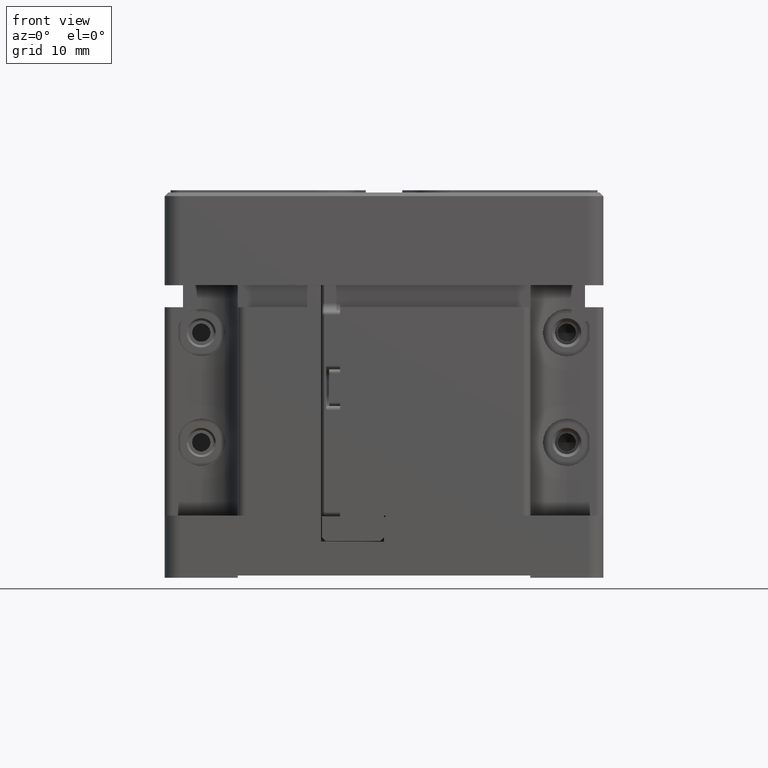
[diagram: clean part render]
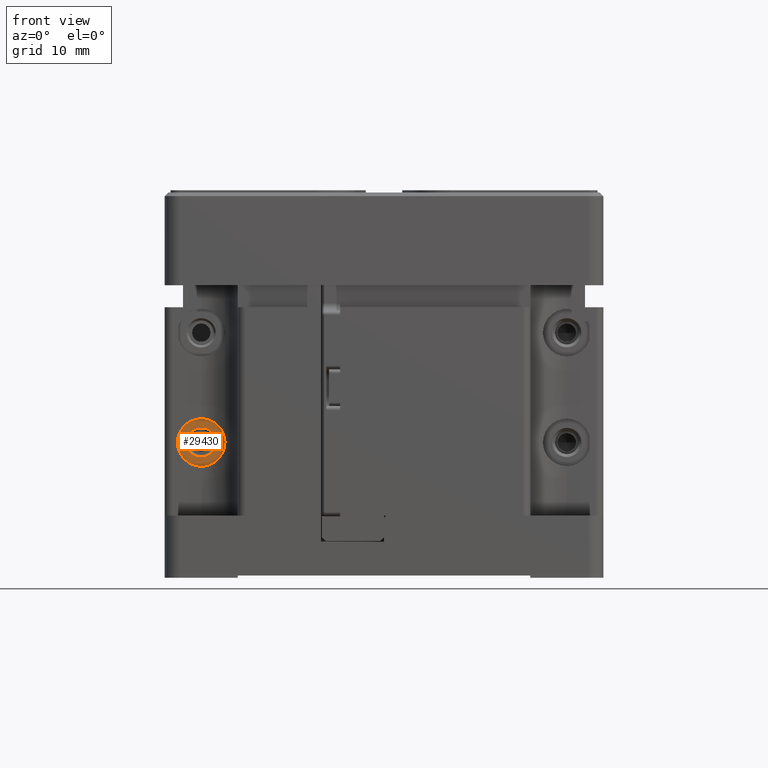
[diagram: same view with one face highlighted and labeled with its STEP entity id]
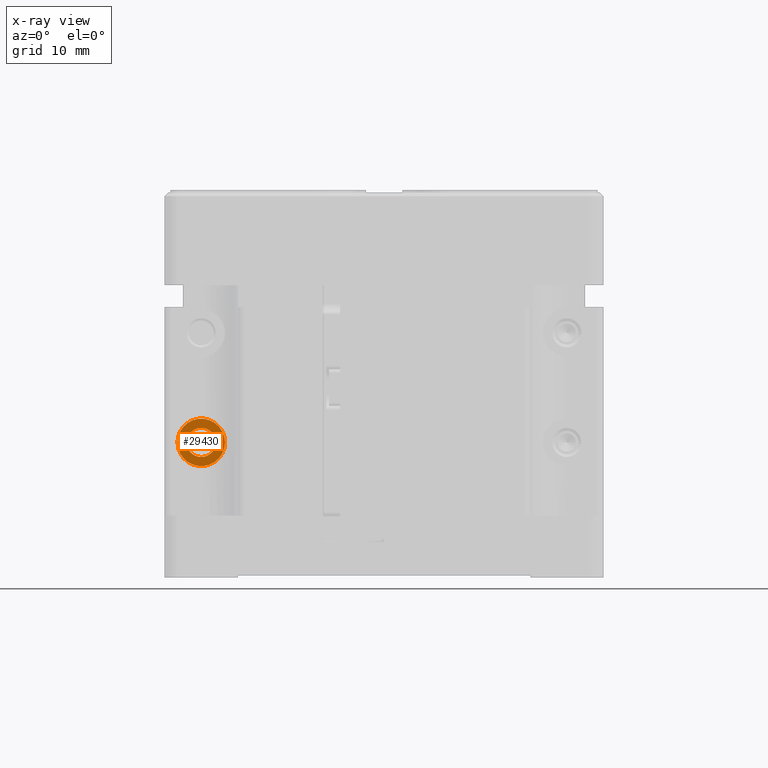
[diagram: x-ray of the same camera — body ghosted, the highlighted face saturated]
A machine part, front view. The second image highlights one B-rep face of the part: STEP entity #29430.
The next image is the same camera in x-ray: the body ghosted, the highlighted face saturated — about 0% of this face is hidden behind the body in this view.
In plain terms, the highlighted planar face has unit normal (0, -1, 0).
Its self-contained STEP definition (entity closure, byte-faithful):
#561 = DIRECTION ( 'NONE',  ( 0.000000000000000000, -1.000000000000000000, 0.000000000000000000 ) ) ;
#779 = DIRECTION ( 'NONE',  ( -1.000000000000000000, 0.000000000000000000, 0.000000000000000000 ) ) ;
#1632 = CARTESIAN_POINT ( 'NONE',  ( -25.00000000000000000, -16.50000000000000000, 10.00000000000000000 ) ) ;
#3420 = CARTESIAN_POINT ( 'NONE',  ( -25.00000000000000000, -16.50000000000000000, 10.00000000000000000 ) ) ;
#4058 = VERTEX_POINT ( 'NONE', #19546 ) ;
#4427 = EDGE_CURVE ( 'NONE', #16233, #13478, #10085, .T. ) ;
#5735 = AXIS2_PLACEMENT_3D ( 'NONE', #19599, #11636, #8990 ) ;
#6370 = EDGE_CURVE ( 'NONE', #4058, #33087, #7009, .T. ) ;
#6569 = EDGE_CURVE ( 'NONE', #4058, #33087, #34643, .T. ) ;
#7009 = CIRCLE ( 'NONE', #13217, 2.000000000000001776 ) ;
#8051 = ORIENTED_EDGE ( 'NONE', *, *, #18907, .F. ) ;
#8990 = DIRECTION ( 'NONE',  ( -1.000000000000000000, 0.000000000000000000, 0.000000000000000000 ) ) ;
#9648 = CIRCLE ( 'NONE', #5735, 3.249999999999999556 ) ;
#10060 = DIRECTION ( 'NONE',  ( 0.000000000000000000, -1.000000000000000000, 0.000000000000000000 ) ) ;
#10085 = CIRCLE ( 'NONE', #14596, 3.249999999999999556 ) ;
#11366 = EDGE_LOOP ( 'NONE', ( #8051, #25109 ) ) ;
#11520 = AXIS2_PLACEMENT_3D ( 'NONE', #32490, #561, #22411 ) ;
#11636 = DIRECTION ( 'NONE',  ( 0.000000000000000000, 1.000000000000000000, 0.000000000000000000 ) ) ;
#12545 = FACE_BOUND ( 'NONE', #27056, .T. ) ;
#13217 = AXIS2_PLACEMENT_3D ( 'NONE', #34790, #32317, #34448 ) ;
#13478 = VERTEX_POINT ( 'NONE', #32224 ) ;
#13795 = ORIENTED_EDGE ( 'NONE', *, *, #6370, .T. ) ;
#14596 = AXIS2_PLACEMENT_3D ( 'NONE', #3420, #19642, #779 ) ;
#16233 = VERTEX_POINT ( 'NONE', #19473 ) ;
#18363 = CARTESIAN_POINT ( 'NONE',  ( -23.00000000000000000, -16.50000000000000000, 10.00000000000000000 ) ) ;
#18907 = EDGE_CURVE ( 'NONE', #16233, #13478, #9648, .T. ) ;
#19473 = CARTESIAN_POINT ( 'NONE',  ( -28.25000000000000000, -16.50000000000000000, 10.00000000000000000 ) ) ;
#19546 = CARTESIAN_POINT ( 'NONE',  ( -27.00000000000000000, -16.50000000000000000, 10.00000000000000000 ) ) ;
#19599 = CARTESIAN_POINT ( 'NONE',  ( -25.00000000000000000, -16.50000000000000000, 10.00000000000000000 ) ) ;
#19642 = DIRECTION ( 'NONE',  ( 0.000000000000000000, -1.000000000000000000, 0.000000000000000000 ) ) ;
#20313 = PLANE ( 'NONE',  #26884 ) ;
#22411 = DIRECTION ( 'NONE',  ( -1.000000000000000000, 0.000000000000000000, 0.000000000000000000 ) ) ;
#25109 = ORIENTED_EDGE ( 'NONE', *, *, #4427, .T. ) ;
#25765 = FACE_OUTER_BOUND ( 'NONE', #11366, .T. ) ;
#26884 = AXIS2_PLACEMENT_3D ( 'NONE', #1632, #10060, #28429 ) ;
#27056 = EDGE_LOOP ( 'NONE', ( #31681, #13795 ) ) ;
#28429 = DIRECTION ( 'NONE',  ( 0.000000000000000000, 0.000000000000000000, -1.000000000000000000 ) ) ;
#29430 = ADVANCED_FACE ( 'NONE', ( #12545, #25765 ), #20313, .T. ) ;
#31681 = ORIENTED_EDGE ( 'NONE', *, *, #6569, .F. ) ;
#32224 = CARTESIAN_POINT ( 'NONE',  ( -21.75000000000000000, -16.50000000000000000, 10.00000000000000000 ) ) ;
#32317 = DIRECTION ( 'NONE',  ( 0.000000000000000000, 1.000000000000000000, 0.000000000000000000 ) ) ;
#32490 = CARTESIAN_POINT ( 'NONE',  ( -25.00000000000000000, -16.50000000000000000, 10.00000000000000000 ) ) ;
#33087 = VERTEX_POINT ( 'NONE', #18363 ) ;
#34448 = DIRECTION ( 'NONE',  ( -1.000000000000000000, 0.000000000000000000, 0.000000000000000000 ) ) ;
#34643 = CIRCLE ( 'NONE', #11520, 2.000000000000001776 ) ;
#34790 = CARTESIAN_POINT ( 'NONE',  ( -25.00000000000000000, -16.50000000000000000, 10.00000000000000000 ) ) ;